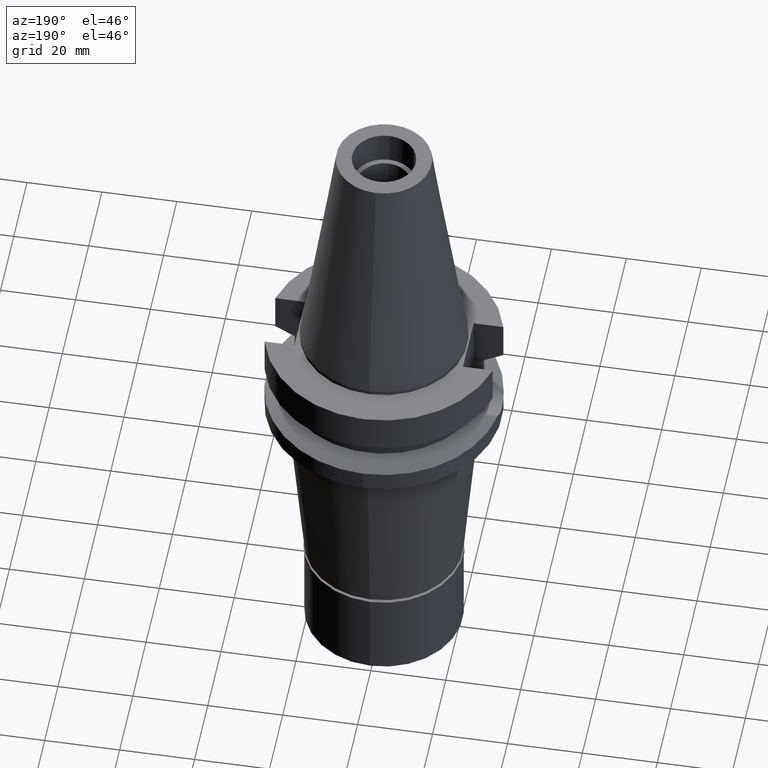
[diagram: clean part render]
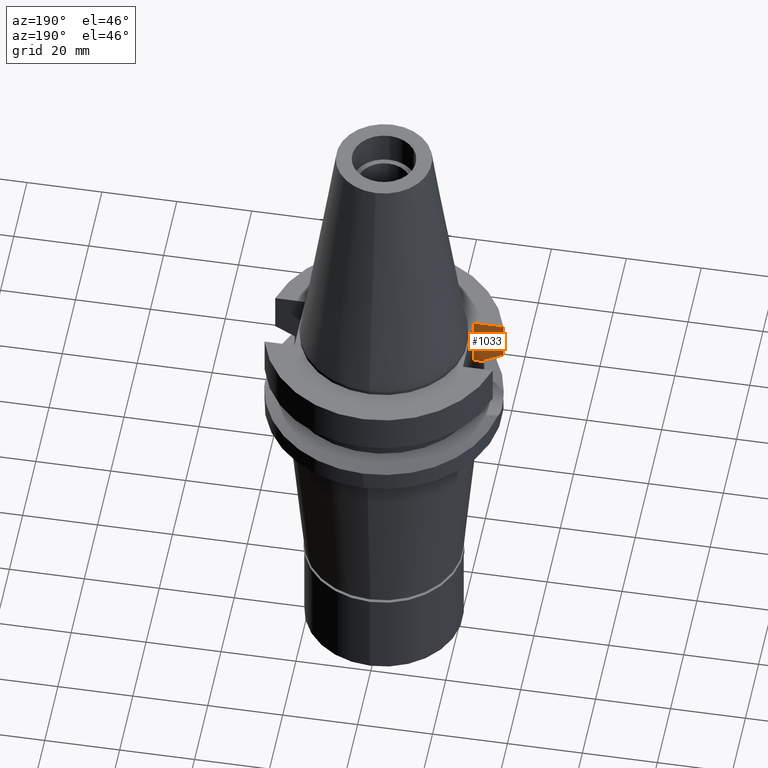
[diagram: same view with one face highlighted and labeled with its STEP entity id]
A machine part, auxiliary view. The second image highlights one B-rep face of the part: STEP entity #1033.
In plain terms, the highlighted planar face has unit normal (0, -1, 0).
Its self-contained STEP definition (entity closure, byte-faithful):
#115 = VECTOR ( 'NONE', #294, 1000.000000000000114 ) ;
#294 = DIRECTION ( 'NONE',  ( 1.807357570554990114E-08, -6.837453230754961454E-08, 0.9999999999999974465 ) ) ;
#356 = VECTOR ( 'NONE', #427, 1000.000000000000000 ) ;
#403 = ORIENTED_EDGE ( 'NONE', *, *, #1231, .T. ) ;
#412 = CARTESIAN_POINT ( 'NONE',  ( -22.50000000000000000, -8.050000000000000711, -1.000000000000000000 ) ) ;
#427 = DIRECTION ( 'NONE',  ( -1.000000000000000000, 3.550916904668000126E-14, 0.0000000000000000000 ) ) ;
#472 = ORIENTED_EDGE ( 'NONE', *, *, #1723, .F. ) ;
#499 = CARTESIAN_POINT ( 'NONE',  ( -28.57292327358449313, -8.049998556115422588, -12.61549606483820085 ) ) ;
#515 = PLANE ( 'NONE',  #2181 ) ;
#601 = EDGE_CURVE ( 'NONE', #2310, #2980, #1950, .T. ) ;
#676 = VERTEX_POINT ( 'NONE', #1435 ) ;
#746 = DIRECTION ( 'NONE',  ( 0.0000000000000000000, -1.000000000000000000, 0.0000000000000000000 ) ) ;
#794 = VECTOR ( 'NONE', #1397, 1000.000000000000114 ) ;
#852 = EDGE_CURVE ( 'NONE', #2310, #2432, #2590, .T. ) ;
#1033 = ADVANCED_FACE ( 'NONE', ( #1502 ), #515, .F. ) ;
#1123 = LINE ( 'NONE', #3068, #794 ) ;
#1184 = CARTESIAN_POINT ( 'NONE',  ( -22.50000000000000000, -8.050000000000000711, -1.000000000000000000 ) ) ;
#1200 = CARTESIAN_POINT ( 'NONE',  ( -22.50000000000000000, -8.050000000000000711, -1.000000000000000000 ) ) ;
#1231 = EDGE_CURVE ( 'NONE', #2980, #2726, #1810, .T. ) ;
#1245 = EDGE_LOOP ( 'NONE', ( #472, #2462, #2677, #2699, #403, #3070 ) ) ;
#1251 = CARTESIAN_POINT ( 'NONE',  ( -22.50000000000000000, -8.050000000000000711, -14.94999999999999929 ) ) ;
#1350 = DIRECTION ( 'NONE',  ( -1.000000000000000000, 1.616208268639000174E-14, -1.034373291929000154E-14 ) ) ;
#1397 = DIRECTION ( 'NONE',  ( -2.937615984138118470E-06, 9.213436080642373874E-06, 0.9999999999532415140 ) ) ;
#1435 = CARTESIAN_POINT ( 'NONE',  ( -25.24772413164999918, -8.049995414398999571, -14.45229203857999956 ) ) ;
#1441 = EDGE_CURVE ( 'NONE', #2726, #676, #1123, .T. ) ;
#1458 = CARTESIAN_POINT ( 'NONE',  ( -30.45402291373999759, -8.049999277588000268, -11.56551215928000076 ) ) ;
#1473 = DIRECTION ( 'NONE',  ( 0.0000000000000000000, 0.0000000000000000000, -1.000000000000000000 ) ) ;
#1488 = CARTESIAN_POINT ( 'NONE',  ( -30.45402291373999759, -8.049999277588000268, -11.56551215928000076 ) ) ;
#1502 = FACE_OUTER_BOUND ( 'NONE', #1245, .T. ) ;
#1524 = DIRECTION ( 'NONE',  ( 0.0000000000000000000, 0.0000000000000000000, -1.000000000000000000 ) ) ;
#1640 = CARTESIAN_POINT ( 'NONE',  ( -22.50000000000000000, -8.050000000000000711, -14.94999999999999929 ) ) ;
#1723 = EDGE_CURVE ( 'NONE', #2524, #676, #2260, .T. ) ;
#1732 = LINE ( 'NONE', #1488, #115 ) ;
#1810 = LINE ( 'NONE', #2054, #2287 ) ;
#1948 = CARTESIAN_POINT ( 'NONE',  ( -25.24772413164999918, -8.049995414398999571, -14.45229203857999956 ) ) ;
#1950 = LINE ( 'NONE', #1184, #3051 ) ;
#2054 = CARTESIAN_POINT ( 'NONE',  ( -22.50000000000000000, -8.050000000000000711, -14.94999999999999929 ) ) ;
#2181 = AXIS2_PLACEMENT_3D ( 'NONE', #1251, #746, #1473 ) ;
#2218 = CARTESIAN_POINT ( 'NONE',  ( -25.24772266958000344, -8.050000000000000711, -14.94999999999999929 ) ) ;
#2260 = B_SPLINE_CURVE_WITH_KNOTS ( 'NONE', 3,
 ( #1458, #499, #2713, #1948 ),
 .UNSPECIFIED., .F., .F.,
 ( 4, 4 ),
 ( 0.0000000000000000000, 1.000000000000000000 ),
 .UNSPECIFIED. ) ;
#2287 = VECTOR ( 'NONE', #1350, 1000.000000000000000 ) ;
#2310 = VERTEX_POINT ( 'NONE', #1200 ) ;
#2432 = VERTEX_POINT ( 'NONE', #3095 ) ;
#2459 = CARTESIAN_POINT ( 'NONE',  ( -30.45402291373999759, -8.049999277588000268, -11.56551215928000076 ) ) ;
#2462 = ORIENTED_EDGE ( 'NONE', *, *, #2866, .T. ) ;
#2524 = VERTEX_POINT ( 'NONE', #2459 ) ;
#2590 = LINE ( 'NONE', #412, #356 ) ;
#2677 = ORIENTED_EDGE ( 'NONE', *, *, #852, .F. ) ;
#2699 = ORIENTED_EDGE ( 'NONE', *, *, #601, .T. ) ;
#2713 = CARTESIAN_POINT ( 'NONE',  ( -26.83754614237341585, -8.049990818642088541, -13.57774889126738671 ) ) ;
#2726 = VERTEX_POINT ( 'NONE', #2218 ) ;
#2866 = EDGE_CURVE ( 'NONE', #2524, #2432, #1732, .T. ) ;
#2980 = VERTEX_POINT ( 'NONE', #1640 ) ;
#3051 = VECTOR ( 'NONE', #1524, 1000.000000000000000 ) ;
#3068 = CARTESIAN_POINT ( 'NONE',  ( -25.24772266958000344, -8.050000000000000711, -14.94999999999999929 ) ) ;
#3070 = ORIENTED_EDGE ( 'NONE', *, *, #1441, .T. ) ;
#3095 = CARTESIAN_POINT ( 'NONE',  ( -30.45402272279000044, -8.050000000000000711, -1.000000000000000000 ) ) ;